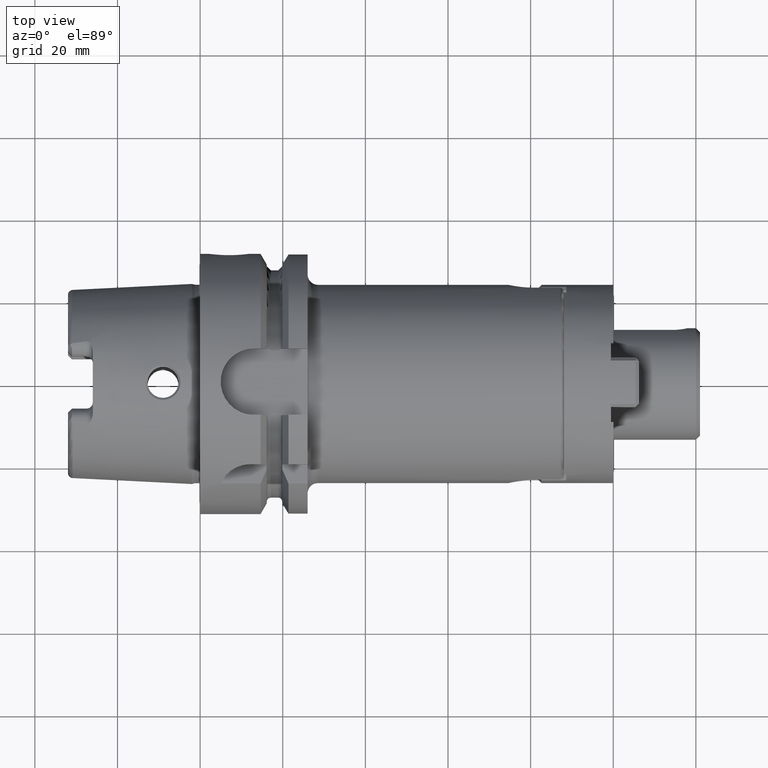
[diagram: clean part render]
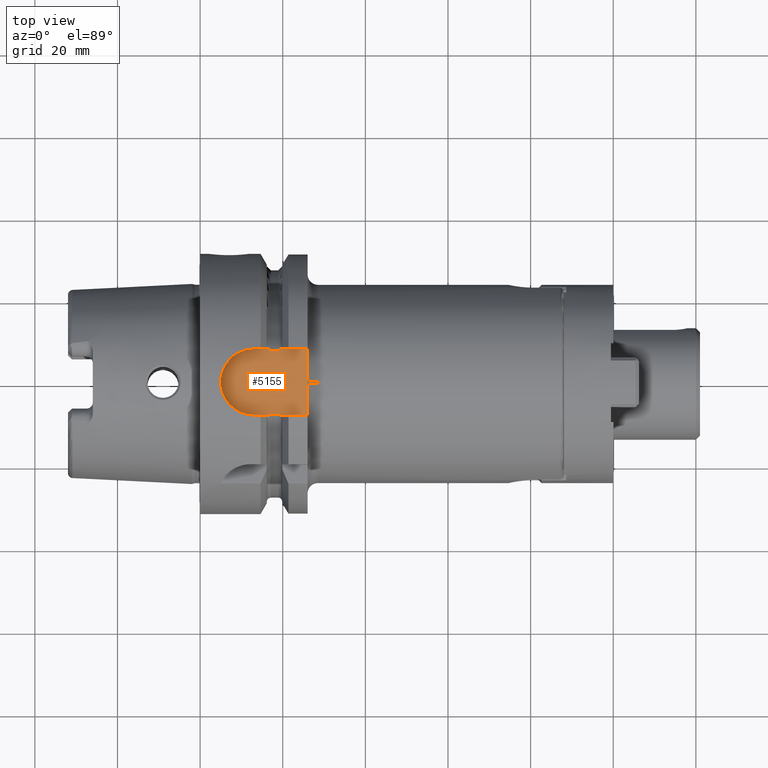
[diagram: same view with one face highlighted and labeled with its STEP entity id]
A machine part, top view. The second image highlights one B-rep face of the part: STEP entity #5155.
In plain terms, the highlighted planar face has unit normal (0, 0, 1).
Its self-contained STEP definition (entity closure, byte-faithful):
#1235=CARTESIAN_POINT('',(1.670911310946E1,8.0175E0,2.64E1));
#1236=CARTESIAN_POINT('',(1.673352951994E1,7.979074793464E0,2.64E1));
#1237=CARTESIAN_POINT('',(1.678346969240E1,7.908219856299E0,2.64E1));
#1238=CARTESIAN_POINT('',(1.686140323483E1,7.821166046425E0,2.64E1));
#1239=CARTESIAN_POINT('',(1.694700550698E1,7.751989508750E0,2.64E1));
#1240=CARTESIAN_POINT('',(1.703710106542E1,7.709022207033E0,2.64E1));
#1241=CARTESIAN_POINT('',(1.709569678300E1,7.7E0,2.64E1));
#1242=CARTESIAN_POINT('',(1.7125E1,7.7E0,2.64E1));
#1286=CARTESIAN_POINT('',(1.7125E1,-7.7E0,2.64E1));
#1287=CARTESIAN_POINT('',(1.709801542874E1,-7.7E0,2.64E1));
#1288=CARTESIAN_POINT('',(1.704428225575E1,-7.707480820281E0,2.64E1));
#1289=CARTESIAN_POINT('',(1.696015728326E1,-7.744711750978E0,2.64E1));
#1290=CARTESIAN_POINT('',(1.688520085667E1,-7.800550899081E0,2.64E1));
#1291=CARTESIAN_POINT('',(1.681986238020E1,-7.866117342831E0,2.64E1));
#1292=CARTESIAN_POINT('',(1.676061128616E1,-7.939936204551E0,2.64E1));
#1293=CARTESIAN_POINT('',(1.672578491309E1,-7.991262830607E0,2.64E1));
#1294=CARTESIAN_POINT('',(1.670911310946E1,-8.0175E0,2.64E1));
#1381=CARTESIAN_POINT('',(1.8875E1,7.7E0,2.64E1));
#1382=CARTESIAN_POINT('',(1.890430468861E1,7.7E0,2.64E1));
#1383=CARTESIAN_POINT('',(1.896290280766E1,7.708993215977E0,2.64E1));
#1384=CARTESIAN_POINT('',(1.905331742183E1,7.752198019553E0,2.64E1));
#1385=CARTESIAN_POINT('',(1.913860453300E1,7.821194226188E0,2.64E1));
#1386=CARTESIAN_POINT('',(1.921661446474E1,7.908317855978E0,2.64E1));
#1387=CARTESIAN_POINT('',(1.926649394598E1,7.979111722839E0,2.64E1));
#1388=CARTESIAN_POINT('',(1.929088689054E1,8.0175E0,2.64E1));
#1436=CARTESIAN_POINT('',(1.929088689054E1,-8.0175E0,2.64E1));
#1437=CARTESIAN_POINT('',(1.927417922618E1,-7.991206394948E0,2.64E1));
#1438=CARTESIAN_POINT('',(1.923922993687E1,-7.939709103662E0,2.64E1));
#1439=CARTESIAN_POINT('',(1.917963781936E1,-7.865495822527E0,2.64E1));
#1440=CARTESIAN_POINT('',(1.911354741171E1,-7.799456458601E0,2.64E1));
#1441=CARTESIAN_POINT('',(1.903907332419E1,-7.744292367168E0,2.64E1));
#1442=CARTESIAN_POINT('',(1.895500739860E1,-7.707298016794E0,2.64E1));
#1443=CARTESIAN_POINT('',(1.890171865616E1,-7.7E0,2.64E1));
#1444=CARTESIAN_POINT('',(1.8875E1,-7.7E0,2.64E1));
#1504=DIRECTION('',(0.E0,1.E0,-6.033513550491E-8));
#1505=VECTOR('',#1504,5.717502623342E0);
#1506=CARTESIAN_POINT('',(2.6E1,2.299997376658E0,2.640000034497E1));
#1507=LINE('',#1506,#1505);
#1545=DIRECTION('',(0.E0,1.E0,5.439735444398E-8));
#1546=VECTOR('',#1545,5.717502391982E0);
#1547=CARTESIAN_POINT('',(2.6E1,-8.0175E0,2.64E1));
#1548=LINE('',#1547,#1546);
#1554=CARTESIAN_POINT('',(2.600200080064E1,-4.824658383989E-6,2.64E1));
#1555=CARTESIAN_POINT('',(2.600200079877E1,-2.558205368604E-1,2.64E1));
#1556=CARTESIAN_POINT('',(2.600168647596E1,-7.672822564928E-1,
2.640000004147E1));
#1557=CARTESIAN_POINT('',(2.600057296244E1,-1.534327425029E0,2.639999985486E1));
#1558=CARTESIAN_POINT('',(2.6E1,-2.044869307108E0,2.640000031102E1));
#1559=CARTESIAN_POINT('',(2.6E1,-2.299997608018E0,2.640000031102E1));
#1561=DIRECTION('',(1.E0,0.E0,0.E0));
#1562=VECTOR('',#1561,3.741613109456E0);
#1563=CARTESIAN_POINT('',(1.29675E1,-8.0175E0,2.64E1));
#1564=LINE('',#1563,#1562);
#1565=CARTESIAN_POINT('',(1.29675E1,0.E0,2.64E1));
#1566=DIRECTION('',(0.E0,0.E0,1.E0));
#1567=DIRECTION('',(0.E0,1.E0,0.E0));
#1568=AXIS2_PLACEMENT_3D('',#1565,#1566,#1567);
#1570=DIRECTION('',(-1.E0,0.E0,0.E0));
#1571=VECTOR('',#1570,3.741613109456E0);
#1572=CARTESIAN_POINT('',(1.670911310946E1,8.0175E0,2.64E1));
#1573=LINE('',#1572,#1571);
#1574=CARTESIAN_POINT('',(2.6E1,2.299997376658E0,2.640000034497E1));
#1575=CARTESIAN_POINT('',(2.6E1,2.044861344858E0,2.640000034497E1));
#1576=CARTESIAN_POINT('',(2.600057299155E1,1.534308860358E0,2.639999983902E1));
#1577=CARTESIAN_POINT('',(2.600168649242E1,7.672672496415E-1,2.640000004600E1));
#1578=CARTESIAN_POINT('',(2.600200080251E1,2.558083330012E-1,2.64E1));
#1579=CARTESIAN_POINT('',(2.600200080064E1,-4.824658383989E-6,2.64E1));
#2018=DIRECTION('',(1.E0,0.E0,0.E0));
#2019=VECTOR('',#2018,6.709113109456E0);
#2020=CARTESIAN_POINT('',(1.929088689054E1,-8.0175E0,2.64E1));
#2021=LINE('',#2020,#2019);
#2054=DIRECTION('',(-1.E0,0.E0,0.E0));
#2055=VECTOR('',#2054,6.709113109456E0);
#2056=CARTESIAN_POINT('',(2.6E1,8.0175E0,2.64E1));
#2057=LINE('',#2056,#2055);
#2458=DIRECTION('',(1.E0,0.E0,0.E0));
#2459=VECTOR('',#2458,1.75E0);
#2460=CARTESIAN_POINT('',(1.7125E1,-7.7E0,2.64E1));
#2461=LINE('',#2460,#2459);
#2466=DIRECTION('',(1.E0,0.E0,0.E0));
#2467=VECTOR('',#2466,1.75E0);
#2468=CARTESIAN_POINT('',(1.7125E1,7.7E0,2.64E1));
#2469=LINE('',#2468,#2467);
#3272=CARTESIAN_POINT('',(1.29675E1,8.0175E0,2.64E1));
#3273=CARTESIAN_POINT('',(1.29675E1,-8.0175E0,2.64E1));
#3274=VERTEX_POINT('',#3272);
#3275=VERTEX_POINT('',#3273);
#3276=CARTESIAN_POINT('',(1.670911310946E1,-8.0175E0,2.64E1));
#3277=VERTEX_POINT('',#3276);
#3282=CARTESIAN_POINT('',(1.670911310946E1,8.0175E0,2.64E1));
#3283=VERTEX_POINT('',#3282);
#3330=CARTESIAN_POINT('',(1.929088689054E1,-8.0175E0,2.64E1));
#3331=CARTESIAN_POINT('',(2.6E1,-8.0175E0,2.64E1));
#3332=VERTEX_POINT('',#3330);
#3333=VERTEX_POINT('',#3331);
#3334=CARTESIAN_POINT('',(2.6E1,8.0175E0,2.64E1));
#3335=CARTESIAN_POINT('',(1.929088689054E1,8.0175E0,2.64E1));
#3336=VERTEX_POINT('',#3334);
#3337=VERTEX_POINT('',#3335);
#3350=VERTEX_POINT('',#1242);
#3351=VERTEX_POINT('',#1286);
#3352=CARTESIAN_POINT('',(1.8875E1,7.7E0,2.64E1));
#3353=VERTEX_POINT('',#3352);
#3354=CARTESIAN_POINT('',(1.8875E1,-7.7E0,2.64E1));
#3355=VERTEX_POINT('',#3354);
#3516=CARTESIAN_POINT('',(2.6E1,-2.300003507262E0,2.639999969444E1));
#3517=VERTEX_POINT('',#3516);
#3518=CARTESIAN_POINT('',(2.6E1,2.300003978645E0,2.639999965338E1));
#3520=VERTEX_POINT('',#3518);
#3522=VERTEX_POINT('',#1554);
#5125=CARTESIAN_POINT('',(0.E0,0.E0,2.64E1));
#5126=DIRECTION('',(0.E0,0.E0,1.E0));
#5127=DIRECTION('',(1.E0,0.E0,0.E0));
#5128=AXIS2_PLACEMENT_3D('',#5125,#5126,#5127);
#5129=PLANE('',#5128);
#5131=ORIENTED_EDGE('',*,*,#5130,.T.);
#5132=ORIENTED_EDGE('',*,*,#5118,.F.);
#5134=ORIENTED_EDGE('',*,*,#5133,.F.);
#5135=ORIENTED_EDGE('',*,*,#5014,.T.);
#5137=ORIENTED_EDGE('',*,*,#5136,.F.);
#5138=ORIENTED_EDGE('',*,*,#4904,.T.);
#5140=ORIENTED_EDGE('',*,*,#5139,.F.);
#5142=ORIENTED_EDGE('',*,*,#5141,.F.);
#5144=ORIENTED_EDGE('',*,*,#5143,.F.);
#5145=ORIENTED_EDGE('',*,*,#4881,.T.);
#5147=ORIENTED_EDGE('',*,*,#5146,.T.);
#5148=ORIENTED_EDGE('',*,*,#4986,.T.);
#5150=ORIENTED_EDGE('',*,*,#5149,.F.);
#5151=ORIENTED_EDGE('',*,*,#5083,.F.);
#5152=ORIENTED_EDGE('',*,*,#5070,.T.);
#5153=EDGE_LOOP('',(#5131,#5132,#5134,#5135,#5137,#5138,#5140,#5142,#5144,#5145,
#5147,#5148,#5150,#5151,#5152));
#5154=FACE_OUTER_BOUND('',#5153,.F.);
#5155=ADVANCED_FACE('',(#5154),#5129,.T.);
#1243=B_SPLINE_CURVE_WITH_KNOTS('',3,(#1235,#1236,#1237,#1238,#1239,#1240,#1241,
#1242),.UNSPECIFIED.,.F.,.F.,(4,1,1,1,1,4),(0.E0,2.E-1,4.E-1,6.E-1,8.E-1,1.E0),
.UNSPECIFIED.);
#1295=B_SPLINE_CURVE_WITH_KNOTS('',3,(#1286,#1287,#1288,#1289,#1290,#1291,#1292,
#1293,#1294),.UNSPECIFIED.,.F.,.F.,(4,1,1,1,1,1,4),(0.E0,1.666666666667E-1,
3.333333333333E-1,5.E-1,6.666666666667E-1,8.333333333333E-1,1.E0),
.UNSPECIFIED.);
#1389=B_SPLINE_CURVE_WITH_KNOTS('',3,(#1381,#1382,#1383,#1384,#1385,#1386,#1387,
#1388),.UNSPECIFIED.,.F.,.F.,(4,1,1,1,1,4),(0.E0,2.E-1,4.E-1,6.E-1,8.E-1,1.E0),
.UNSPECIFIED.);
#1445=B_SPLINE_CURVE_WITH_KNOTS('',3,(#1436,#1437,#1438,#1439,#1440,#1441,#1442,
#1443,#1444),.UNSPECIFIED.,.F.,.F.,(4,1,1,1,1,1,4),(0.E0,1.666666666667E-1,
3.333333333333E-1,5.E-1,6.666666666667E-1,8.333333333333E-1,1.E0),
.UNSPECIFIED.);
#1560=B_SPLINE_CURVE_WITH_KNOTS('',3,(#1554,#1555,#1556,#1557,#1558,#1559),
.UNSPECIFIED.,.F.,.F.,(4,1,1,4),(0.E0,3.333333333333E-1,6.666666666667E-1,1.E0),
.UNSPECIFIED.);
#1569=CIRCLE('',#1568,8.0175E0);
#1580=B_SPLINE_CURVE_WITH_KNOTS('',3,(#1574,#1575,#1576,#1577,#1578,#1579),
.UNSPECIFIED.,.F.,.F.,(4,1,1,4),(0.E0,3.333333333333E-1,6.666666666667E-1,1.E0),
.UNSPECIFIED.);
#4881=EDGE_CURVE('',#3283,#3350,#1243,.T.);
#4904=EDGE_CURVE('',#3351,#3277,#1295,.T.);
#4986=EDGE_CURVE('',#3353,#3337,#1389,.T.);
#5014=EDGE_CURVE('',#3332,#3355,#1445,.T.);
#5070=EDGE_CURVE('',#3520,#3522,#1580,.T.);
#5083=EDGE_CURVE('',#3520,#3336,#1507,.T.);
#5118=EDGE_CURVE('',#3333,#3517,#1548,.T.);
#5130=EDGE_CURVE('',#3522,#3517,#1560,.T.);
#5133=EDGE_CURVE('',#3332,#3333,#2021,.T.);
#5136=EDGE_CURVE('',#3351,#3355,#2461,.T.);
#5139=EDGE_CURVE('',#3275,#3277,#1564,.T.);
#5141=EDGE_CURVE('',#3274,#3275,#1569,.T.);
#5143=EDGE_CURVE('',#3283,#3274,#1573,.T.);
#5146=EDGE_CURVE('',#3350,#3353,#2469,.T.);
#5149=EDGE_CURVE('',#3336,#3337,#2057,.T.);